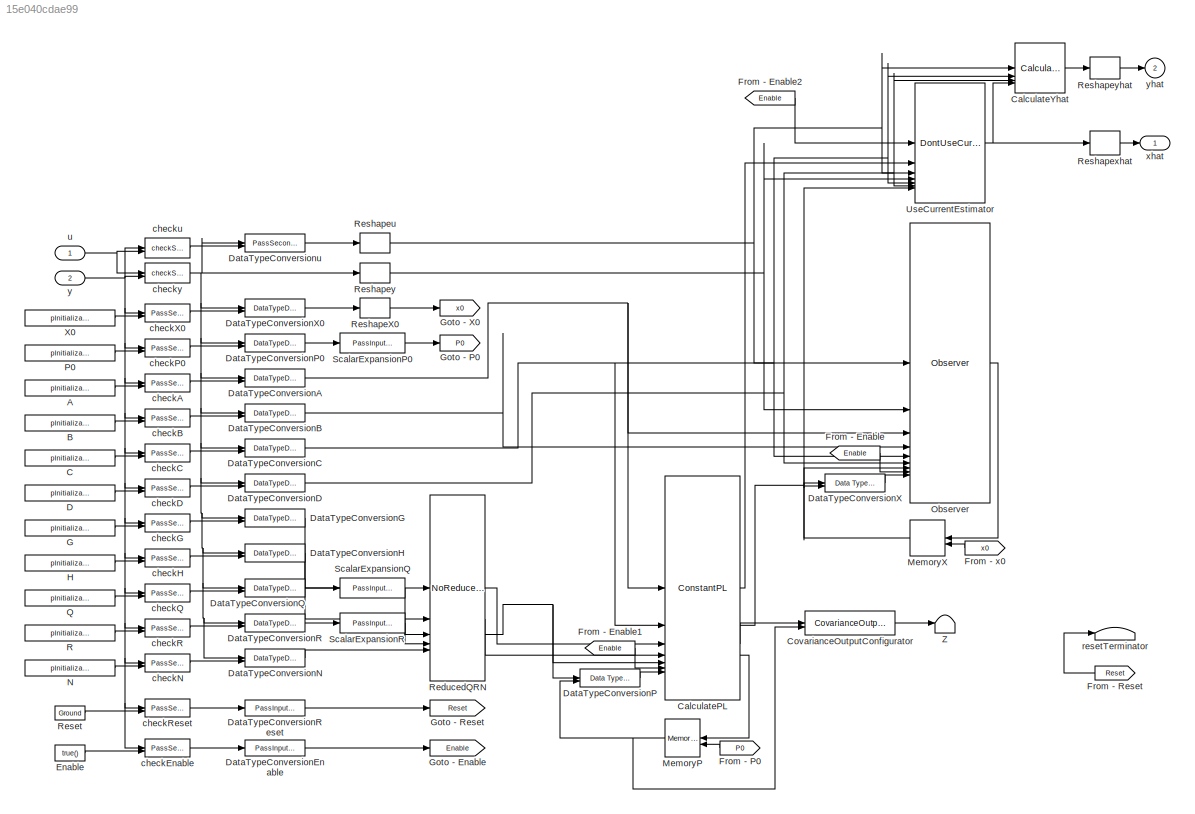
MODEL slx_15e040cdae99
KIND model
CONFIG AbsTol = auto
CONFIG EnableMultiTasking = off
CONFIG FixedStep = auto
CONFIG MaxStep = auto
CONFIG MinStep = auto
CONFIG RelTol = 1e-3
CONFIG SampleTimeConstraint = Unconstrained
CONFIG SolverName = VariableStepAuto
CONFIG StartTime = 0.0
CONFIG StopTime = 10.0
BLOCK [Constant] A
  OutDataTypeStr = Inherit: Inherit via back propagation
  Value = pInitialization.A
  VectorParams1D = off
BLOCK [Constant] B
  OutDataTypeStr = Inherit: Inherit via back propagation
  Value = pInitialization.B
  VectorParams1D = off
BLOCK [Constant] C
  OutDataTypeStr = Inherit: Inherit via back propagation
  Value = pInitialization.C
  VectorParams1D = off
BLOCK [Reference] CalculatePL  REF=ctrlSharedLib/KalmanFilterUtilities/ConstantPL
  SourceBlock = ctrlSharedLib/KalmanFilterUtilities/ConstantPL
  SourceType = ctrlKalmanFilterConstantPL
BLOCK [Reference] CalculateYhat  REF=ctrlSharedLib/KalmanFilterUtilities/CalculateYhatZeroD
  SourceBlock = ctrlSharedLib/KalmanFilterUtilities/CalculateYhatZeroD
  SourceType = ctrlKalmanFilterCalculateYhatZeroD
BLOCK [Reference] CovarianceOutputConfigurator  REF=ctrlSharedLib/Kalman Filter/CovarianceOutputConfigurator
  SourceBlock = ctrlSharedLib/Kalman Filter/CovarianceOutputConfigurator
  SourceType = SubSystem
BLOCK [Constant] D
  OutDataTypeStr = Inherit: Inherit via back propagation
  Value = pInitialization.D
  VectorParams1D = off
BLOCK [Reference] DataTypeConversionA  REF=ctrlSharedLib/Utilities/DataTypeDuplicateAndOutput
  SourceBlock = ctrlSharedLib/Utilities/DataTypeDuplicateAndOutput
  SourceType = ctrlDataTypeDuplicateAndOutput
BLOCK [Reference] DataTypeConversionB  REF=ctrlSharedLib/Utilities/DataTypeDuplicateAndOutput
  SourceBlock = ctrlSharedLib/Utilities/DataTypeDuplicateAndOutput
  SourceType = ctrlDataTypeDuplicateAndOutput
BLOCK [Reference] DataTypeConversionC  REF=ctrlSharedLib/Utilities/DataTypeDuplicateAndOutput
  SourceBlock = ctrlSharedLib/Utilities/DataTypeDuplicateAndOutput
  SourceType = ctrlDataTypeDuplicateAndOutput
BLOCK [Reference] DataTypeConversionD  REF=ctrlSharedLib/Utilities/DataTypeDuplicateAndOutput
  SourceBlock = ctrlSharedLib/Utilities/DataTypeDuplicateAndOutput
  SourceType = ctrlDataTypeDuplicateAndOutput
BLOCK [Reference] DataTypeConversionEnable  REF=ctrlSharedLib/Utilities/PassInputThrough
  SourceBlock = ctrlSharedLib/Utilities/PassInputThrough
BLOCK [Reference] DataTypeConversionG  REF=ctrlSharedLib/Utilities/DataTypeDuplicateAndOutput
  SourceBlock = ctrlSharedLib/Utilities/DataTypeDuplicateAndOutput
  SourceType = ctrlDataTypeDuplicateAndOutput
BLOCK [Reference] DataTypeConversionH  REF=ctrlSharedLib/Utilities/DataTypeDuplicateAndOutput
  SourceBlock = ctrlSharedLib/Utilities/DataTypeDuplicateAndOutput
  SourceType = ctrlDataTypeDuplicateAndOutput
BLOCK [Reference] DataTypeConversionN  REF=ctrlSharedLib/Utilities/DataTypeDuplicateAndOutput
  SourceBlock = ctrlSharedLib/Utilities/DataTypeDuplicateAndOutput
  SourceType = ctrlDataTypeDuplicateAndOutput
BLOCK [Reference] DataTypeConversionP  REF=simulink/Signal
Attributes/Data Type
Conversion
Inherited
  SourceBlock = simulink/Signal\nAttributes/Data Type\nConversion\nInherited
  SourceType = Conversion Inherited
BLOCK [Reference] DataTypeConversionP0  REF=ctrlSharedLib/Utilities/DataTypeDuplicateAndOutput
  SourceBlock = ctrlSharedLib/Utilities/DataTypeDuplicateAndOutput
  SourceType = ctrlDataTypeDuplicateAndOutput
BLOCK [Reference] DataTypeConversionQ  REF=ctrlSharedLib/Utilities/DataTypeDuplicateAndOutput
  SourceBlock = ctrlSharedLib/Utilities/DataTypeDuplicateAndOutput
  SourceType = ctrlDataTypeDuplicateAndOutput
BLOCK [Reference] DataTypeConversionR  REF=ctrlSharedLib/Utilities/DataTypeDuplicateAndOutput
  SourceBlock = ctrlSharedLib/Utilities/DataTypeDuplicateAndOutput
  SourceType = ctrlDataTypeDuplicateAndOutput
BLOCK [Reference] DataTypeConversionReset  REF=ctrlSharedLib/Utilities/PassInputThrough
  SourceBlock = ctrlSharedLib/Utilities/PassInputThrough
BLOCK [Reference] DataTypeConversionX  REF=simulink/Signal
Attributes/Data Type
Conversion
Inherited
  SourceBlock = simulink/Signal\nAttributes/Data Type\nConversion\nInherited
  SourceType = Conversion Inherited
BLOCK [Reference] DataTypeConversionX0  REF=ctrlSharedLib/Utilities/DataTypeDuplicateAndOutput
  SourceBlock = ctrlSharedLib/Utilities/DataTypeDuplicateAndOutput
  SourceType = ctrlDataTypeDuplicateAndOutput
BLOCK [Reference] DataTypeConversionu  REF=ctrlSharedLib/KalmanFilterUtilities/PassSecondInputThrough
  SourceBlock = ctrlSharedLib/KalmanFilterUtilities/PassSecondInputThrough
  SourceType = ctrlKalmanFilterPassSecondInputThrough
BLOCK [Constant] Enable
  OutDataTypeStr = boolean
  Value = true()
BLOCK [From] From - Enable
  GotoTag = Enable
BLOCK [From] From - Enable1
  GotoTag = Enable
BLOCK [From] From - Enable2
  GotoTag = Enable
  NameLocation = top
BLOCK [From] From - P0
  GotoTag = P0
BLOCK [From] From - Reset
  GotoTag = Reset
BLOCK [From] From - x0
  GotoTag = x0
BLOCK [Constant] G
  OutDataTypeStr = Inherit: Inherit via back propagation
  Value = pInitialization.G
  VectorParams1D = off
BLOCK [Goto] Goto - Enable
  GotoTag = Enable
BLOCK [Goto] Goto - P0
  GotoTag = P0
BLOCK [Goto] Goto - Reset
  GotoTag = Reset
BLOCK [Goto] Goto - X0
  GotoTag = x0
BLOCK [Constant] H
  OutDataTypeStr = Inherit: Inherit via back propagation
  Value = pInitialization.H
  VectorParams1D = off
BLOCK [Reference] MemoryP  REF=ctrlSharedLib/KalmanFilterUtilities/MemoryP
  SourceBlock = ctrlSharedLib/KalmanFilterUtilities/MemoryP
  SourceType = ctrlKalmanFilterNoMemoryP
BLOCK [Delay] MemoryX
  DelayLength = 1
  InitialConditionSource = Input port
  InputPortMap = u0,p4
  SampleTime = pInitialization.Ts
BLOCK [Constant] N
  OutDataTypeStr = Inherit: Inherit via back propagation
  Value = pInitialization.N
  VectorParams1D = off
BLOCK [Reference] Observer  REF=ctrlSharedLib/Kalman Filter/Observer
  SourceBlock = ctrlSharedLib/Kalman Filter/Observer
  SourceType = SubSystem
BLOCK [Constant] P0
  OutDataTypeStr = Inherit: Inherit via back propagation
  Value = pInitialization.P0
BLOCK [Constant] Q
  OutDataTypeStr = Inherit: Inherit via back propagation
  Value = pInitialization.Q
  VectorParams1D = off
BLOCK [Constant] R
  OutDataTypeStr = Inherit: Inherit via back propagation
  Value = pInitialization.R
  VectorParams1D = off
BLOCK [Reference] ReducedQRN  REF=ctrlSharedLib/KalmanFilterUtilities/NoReducedQRN
  SourceBlock = ctrlSharedLib/KalmanFilterUtilities/NoReducedQRN
  SourceType = ctrlKalmanFilterNoReducedQRN
BLOCK [Reference] Reset  REF=ctrlSharedLib/Utilities/Ground
  SourceBlock = ctrlSharedLib/Utilities/Ground
  SourceType = ctrlSharedLibGround
BLOCK [Reshape] ReshapeX0
BLOCK [Reshape] Reshapeu
  NameLocation = top
BLOCK [Reshape] Reshapexhat
BLOCK [Reshape] Reshapey
BLOCK [Reshape] Reshapeyhat
BLOCK [Reference] ScalarExpansionP0  REF=ctrlSharedLib/Utilities/PassInputThrough
  SourceBlock = ctrlSharedLib/Utilities/PassInputThrough
BLOCK [Reference] ScalarExpansionQ  REF=ctrlSharedLib/Utilities/PassInputThrough
  SourceBlock = ctrlSharedLib/Utilities/PassInputThrough
BLOCK [Reference] ScalarExpansionR  REF=ctrlSharedLib/Utilities/PassInputThrough
  SourceBlock = ctrlSharedLib/Utilities/PassInputThrough
BLOCK [Reference] UseCurrentEstimator  REF=ctrlSharedLib/KalmanFilterUtilities/DontUseCurrentEstimator
  SourceBlock = ctrlSharedLib/KalmanFilterUtilities/DontUseCurrentEstimator
  SourceType = ctrlKalmanFilterDontUseCurrentEstimator
BLOCK [Constant] X0
  OutDataTypeStr = Inherit: Inherit via back propagation
  Value = pInitialization.X0
  VectorParams1D = off
BLOCK [Terminator] Z
BLOCK [Reference] checkA  REF=ctrlSharedLib/KalmanFilterUtilities/PassSecondInputThrough
  SourceBlock = ctrlSharedLib/KalmanFilterUtilities/PassSecondInputThrough
  SourceType = ctrlKalmanFilterPassSecondInputThrough
BLOCK [Reference] checkB  REF=ctrlSharedLib/KalmanFilterUtilities/PassSecondInputThrough
  SourceBlock = ctrlSharedLib/KalmanFilterUtilities/PassSecondInputThrough
  SourceType = ctrlKalmanFilterPassSecondInputThrough
BLOCK [Reference] checkC  REF=ctrlSharedLib/KalmanFilterUtilities/PassSecondInputThrough
  SourceBlock = ctrlSharedLib/KalmanFilterUtilities/PassSecondInputThrough
  SourceType = ctrlKalmanFilterPassSecondInputThrough
BLOCK [Reference] checkD  REF=ctrlSharedLib/KalmanFilterUtilities/PassSecondInputThrough
  SourceBlock = ctrlSharedLib/KalmanFilterUtilities/PassSecondInputThrough
  SourceType = ctrlKalmanFilterPassSecondInputThrough
BLOCK [Reference] checkEnable  REF=ctrlSharedLib/KalmanFilterUtilities/PassSecondInputThrough
  SourceBlock = ctrlSharedLib/KalmanFilterUtilities/PassSecondInputThrough
  SourceType = ctrlKalmanFilterPassSecondInputThrough
BLOCK [Reference] checkG  REF=ctrlSharedLib/KalmanFilterUtilities/PassSecondInputThrough
  SourceBlock = ctrlSharedLib/KalmanFilterUtilities/PassSecondInputThrough
  SourceType = ctrlKalmanFilterPassSecondInputThrough
BLOCK [Reference] checkH  REF=ctrlSharedLib/KalmanFilterUtilities/PassSecondInputThrough
  SourceBlock = ctrlSharedLib/KalmanFilterUtilities/PassSecondInputThrough
  SourceType = ctrlKalmanFilterPassSecondInputThrough
BLOCK [Reference] checkN  REF=ctrlSharedLib/KalmanFilterUtilities/PassSecondInputThrough
  SourceBlock = ctrlSharedLib/KalmanFilterUtilities/PassSecondInputThrough
  SourceType = ctrlKalmanFilterPassSecondInputThrough
BLOCK [Reference] checkP0  REF=ctrlSharedLib/KalmanFilterUtilities/PassSecondInputThrough
  SourceBlock = ctrlSharedLib/KalmanFilterUtilities/PassSecondInputThrough
  SourceType = ctrlKalmanFilterPassSecondInputThrough
BLOCK [Reference] checkQ  REF=ctrlSharedLib/KalmanFilterUtilities/PassSecondInputThrough
  SourceBlock = ctrlSharedLib/KalmanFilterUtilities/PassSecondInputThrough
  SourceType = ctrlKalmanFilterPassSecondInputThrough
BLOCK [Reference] checkR  REF=ctrlSharedLib/KalmanFilterUtilities/PassSecondInputThrough
  SourceBlock = ctrlSharedLib/KalmanFilterUtilities/PassSecondInputThrough
  SourceType = ctrlKalmanFilterPassSecondInputThrough
BLOCK [Reference] checkReset  REF=ctrlSharedLib/KalmanFilterUtilities/PassSecondInputThrough
  SourceBlock = ctrlSharedLib/KalmanFilterUtilities/PassSecondInputThrough
  SourceType = ctrlKalmanFilterPassSecondInputThrough
BLOCK [Reference] checkX0  REF=ctrlSharedLib/KalmanFilterUtilities/PassSecondInputThrough
  SourceBlock = ctrlSharedLib/KalmanFilterUtilities/PassSecondInputThrough
  SourceType = ctrlKalmanFilterPassSecondInputThrough
BLOCK [Reference] checku  REF=ctrlSharedLib/KalmanFilterUtilities/checkSignals
  NameLocation = top
  SourceBlock = ctrlSharedLib/KalmanFilterUtilities/checkSignals
  SourceType = ctrlKalmanFilterCheckSignals
BLOCK [Reference] checky  REF=ctrlSharedLib/KalmanFilterUtilities/checkSignals
  SourceBlock = ctrlSharedLib/KalmanFilterUtilities/checkSignals
  SourceType = ctrlKalmanFilterCheckSignals
BLOCK [Terminator] resetTerminator
BLOCK [Inport] u
  NameLocation = top
BLOCK [Outport] xhat
  VectorParamsAs1DForOutWhenUnconnected = off
BLOCK [Inport] y
  Port = 2
BLOCK [Outport] yhat
  Port = 2
LINE A:1 -> checkA:2
LINE B:1 -> checkB:2
LINE C:1 -> checkC:2
LINE CalculatePL:1 -> UseCurrentEstimator:2
NET CalculatePL:2 -> DataTypeConversionX:1, Observer:7
LINE CalculatePL:3 -> CovarianceOutputConfigurator:1
LINE CalculatePL:4 -> MemoryP:1
LINE CalculateYhat:1 -> Reshapeyhat:1
LINE CovarianceOutputConfigurator:1 -> Z:1
LINE D:1 -> checkD:2
NET DataTypeConversionA:1 -> CalculatePL:1, Observer:3
LINE DataTypeConversionB:1 -> Observer:4
NET DataTypeConversionC:1 -> CalculatePL:2, CalculateYhat:2, Observer:5, UseCurrentEstimator:5
NET DataTypeConversionD:1 -> CalculateYhat:3, Observer:6, UseCurrentEstimator:6
LINE DataTypeConversionEnable:1 -> Goto - Enable:1
LINE DataTypeConversionG:1 -> ReducedQRN:1
LINE DataTypeConversionH:1 -> ReducedQRN:2
LINE DataTypeConversionN:1 -> ReducedQRN:5
LINE DataTypeConversionP0:1 -> ScalarExpansionP0:1
LINE DataTypeConversionP:1 -> CalculatePL:7
LINE DataTypeConversionQ:1 -> ScalarExpansionQ:1
LINE DataTypeConversionR:1 -> ScalarExpansionR:1
LINE DataTypeConversionReset:1 -> Goto - Reset:1
LINE DataTypeConversionX0:1 -> ReshapeX0:1
LINE DataTypeConversionX:1 -> Observer:9
LINE DataTypeConversionu:1 -> Reshapeu:1
LINE Enable:1 -> checkEnable:2
LINE From - Enable1:1 -> CalculatePL:6
LINE From - Enable2:1 -> UseCurrentEstimator:1
LINE From - Enable:1 -> Observer:8
LINE From - P0:1 -> MemoryP:2
LINE From - Reset:1 -> resetTerminator:1
LINE From - x0:1 -> MemoryX:2
LINE G:1 -> checkG:2
LINE H:1 -> checkH:2
NET MemoryP:1 -> CovarianceOutputConfigurator:2, DataTypeConversionP:2
NET MemoryX:1 -> DataTypeConversionX:2, UseCurrentEstimator:7
LINE N:1 -> checkN:2
LINE Observer:1 -> MemoryX:1
LINE P0:1 -> checkP0:2
LINE Q:1 -> checkQ:2
LINE R:1 -> checkR:2
LINE ReducedQRN:1 -> CalculatePL:3
LINE ReducedQRN:2 -> CalculatePL:4
NET ReducedQRN:3 -> CalculatePL:5, DataTypeConversionP:1
LINE Reset:1 -> checkReset:2
LINE ReshapeX0:1 -> Goto - X0:1
NET Reshapeu:1 -> CalculateYhat:1, Observer:1, UseCurrentEstimator:3
LINE Reshapexhat:1 -> xhat:1
NET Reshapey:1 -> Observer:2, UseCurrentEstimator:4
LINE Reshapeyhat:1 -> yhat:1
LINE ScalarExpansionP0:1 -> Goto - P0:1
LINE ScalarExpansionQ:1 -> ReducedQRN:3
LINE ScalarExpansionR:1 -> ReducedQRN:4
NET UseCurrentEstimator:1 -> CalculateYhat:4, Reshapexhat:1
LINE X0:1 -> checkX0:2
LINE checkA:1 -> DataTypeConversionA:2
LINE checkB:1 -> DataTypeConversionB:2
LINE checkC:1 -> DataTypeConversionC:2
LINE checkD:1 -> DataTypeConversionD:2
LINE checkEnable:1 -> DataTypeConversionEnable:1
LINE checkG:1 -> DataTypeConversionG:2
LINE checkH:1 -> DataTypeConversionH:2
LINE checkN:1 -> DataTypeConversionN:2
LINE checkP0:1 -> DataTypeConversionP0:2
LINE checkQ:1 -> DataTypeConversionQ:2
LINE checkR:1 -> DataTypeConversionR:2
LINE checkReset:1 -> DataTypeConversionReset:1
LINE checkX0:1 -> DataTypeConversionX0:2
LINE checku:1 -> DataTypeConversionu:2
NET checky:1 -> DataTypeConversionA:1, DataTypeConversionB:1, DataTypeConversionC:1, DataTypeConversionD:1, DataTypeConversionG:1, DataTypeConversionH:1, DataTypeConversionN:1, DataTypeConversionP0:1, DataTypeConversionQ:1, DataTypeConversionR:1, DataTypeConversionX0:1, DataTypeConversionu:1, Reshapey:1
NET u:1 -> checku:2, checky:1
NET y:1 -> checkA:1, checkB:1, checkC:1, checkD:1, checkEnable:1, checkG:1, checkH:1, checkN:1, checkP0:1, checkQ:1, checkR:1, checkReset:1, checkX0:1, checku:1, checky:2
note: NET lines group one-source signal fan-out (src -> all destinations, sorted); 1:1 wires keep LINE
